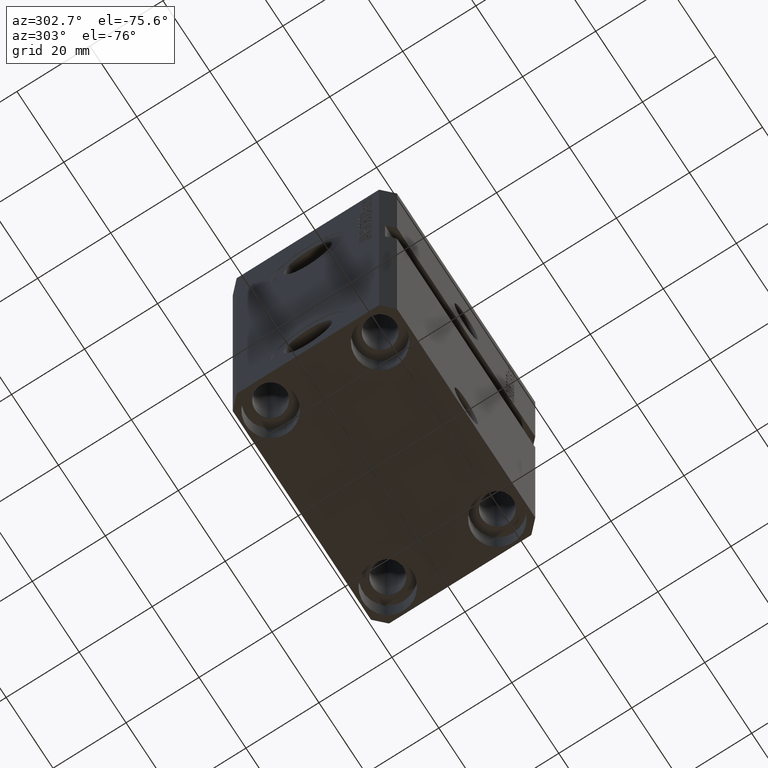
[diagram: clean part render]
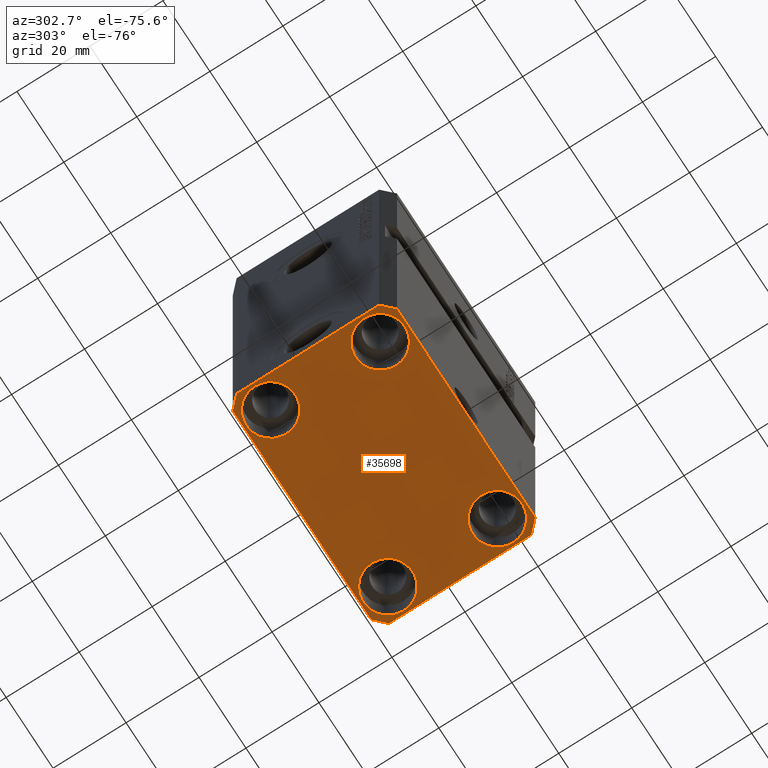
[diagram: same view with one face highlighted and labeled with its STEP entity id]
A machine part, auxiliary view. The second image highlights one B-rep face of the part: STEP entity #35698.
In plain terms, the highlighted planar face has unit normal (0, 0, 1).
Its self-contained STEP definition (entity closure, byte-faithful):
#857 = VECTOR ( 'NONE', #30151, 1000.000000000000000 ) ;
#1194 = DIRECTION ( 'NONE',  ( 1.000000000000000000, 0.000000000000000000, 0.000000000000000000 ) ) ;
#2670 = DIRECTION ( 'NONE',  ( 1.000000000000000000, 0.000000000000000000, 0.000000000000000000 ) ) ;
#3075 = EDGE_CURVE ( 'NONE', #17474, #27251, #9163, .T. ) ;
#3369 = LINE ( 'NONE', #42885, #857 ) ;
#3372 = VERTEX_POINT ( 'NONE', #23708 ) ;
#3601 = AXIS2_PLACEMENT_3D ( 'NONE', #34817, #10551, #42070 ) ;
#3788 = EDGE_CURVE ( 'NONE', #43618, #3372, #3369, .T. ) ;
#3791 = AXIS2_PLACEMENT_3D ( 'NONE', #38807, #34836, #6346 ) ;
#4440 = EDGE_CURVE ( 'NONE', #25737, #23677, #35612, .T. ) ;
#5726 = ORIENTED_EDGE ( 'NONE', *, *, #31973, .F. ) ;
#5839 = CARTESIAN_POINT ( 'NONE',  ( -29.49999999999650413, -22.49999999999949907, -107.0000000000000000 ) ) ;
#5885 = DIRECTION ( 'NONE',  ( 1.000000000000000000, 0.000000000000000000, 0.000000000000000000 ) ) ;
#6346 = DIRECTION ( 'NONE',  ( 1.000000000000000000, 0.000000000000000000, 0.000000000000000000 ) ) ;
#6481 = ORIENTED_EDGE ( 'NONE', *, *, #39179, .T. ) ;
#6886 = EDGE_CURVE ( 'NONE', #14270, #43878, #26251, .T. ) ;
#7192 = ORIENTED_EDGE ( 'NONE', *, *, #3075, .F. ) ;
#8447 = EDGE_CURVE ( 'NONE', #31248, #15737, #31954, .T. ) ;
#8511 = DIRECTION ( 'NONE',  ( -0.000000000000000000, -0.000000000000000000, 1.000000000000000000 ) ) ;
#8606 = DIRECTION ( 'NONE',  ( 1.000000000000000000, 0.000000000000000000, 0.000000000000000000 ) ) ;
#9163 = LINE ( 'NONE', #12703, #43671 ) ;
#9418 = CARTESIAN_POINT ( 'NONE',  ( -25.00000000000000355, -15.00000000000000000, -107.0000000000000000 ) ) ;
#10152 = LINE ( 'NONE', #24512, #38445 ) ;
#10551 = DIRECTION ( 'NONE',  ( -0.000000000000000000, -0.000000000000000000, 1.000000000000000000 ) ) ;
#10661 = CARTESIAN_POINT ( 'NONE',  ( -25.00000000000000355, -15.00000000000000000, -107.0000000000000000 ) ) ;
#11046 = ORIENTED_EDGE ( 'NONE', *, *, #3788, .F. ) ;
#11181 = CARTESIAN_POINT ( 'NONE',  ( 29.49999999999707967, 22.49999999999951328, -107.0000000000000000 ) ) ;
#11667 = AXIS2_PLACEMENT_3D ( 'NONE', #40957, #8511, #1194 ) ;
#12597 = EDGE_LOOP ( 'NONE', ( #42720, #29560 ) ) ;
#12605 = DIRECTION ( 'NONE',  ( -0.000000000000000000, -0.000000000000000000, 1.000000000000000000 ) ) ;
#12703 = CARTESIAN_POINT ( 'NONE',  ( 32.49999999999702993, 19.49999999999945999, -107.0000000000000000 ) ) ;
#13924 = VERTEX_POINT ( 'NONE', #31674 ) ;
#14270 = VERTEX_POINT ( 'NONE', #5839 ) ;
#14468 = DIRECTION ( 'NONE',  ( -0.000000000000000000, -0.000000000000000000, 1.000000000000000000 ) ) ;
#15270 = EDGE_CURVE ( 'NONE', #27251, #13924, #21947, .T. ) ;
#15687 = EDGE_LOOP ( 'NONE', ( #19629, #40084 ) ) ;
#15737 = VERTEX_POINT ( 'NONE', #45756 ) ;
#16057 = DIRECTION ( 'NONE',  ( 0.7071067811865474617, -0.7071067811865474617, 0.000000000000000000 ) ) ;
#16185 = ORIENTED_EDGE ( 'NONE', *, *, #37130, .F. ) ;
#16898 = CARTESIAN_POINT ( 'NONE',  ( -29.49999999999650413, 22.49999999999949907, -107.0000000000000000 ) ) ;
#17004 = CARTESIAN_POINT ( 'NONE',  ( 0.000000000000000000, 0.000000000000000000, -107.0000000000000000 ) ) ;
#17236 = FACE_OUTER_BOUND ( 'NONE', #28464, .T. ) ;
#17474 = VERTEX_POINT ( 'NONE', #21304 ) ;
#17784 = DIRECTION ( 'NONE',  ( 0.7071067811865483499, 0.7071067811865466846, 0.000000000000000000 ) ) ;
#18047 = CARTESIAN_POINT ( 'NONE',  ( 18.25000000002253842, -15.00000000000000000, -107.0000000000000000 ) ) ;
#19143 = EDGE_CURVE ( 'NONE', #15737, #31248, #30675, .T. ) ;
#19192 = CARTESIAN_POINT ( 'NONE',  ( -29.49999999999650413, -22.49999999999949907, -107.0000000000000000 ) ) ;
#19255 = ORIENTED_EDGE ( 'NONE', *, *, #30448, .F. ) ;
#19347 = DIRECTION ( 'NONE',  ( 1.000000000000000000, 0.000000000000000000, 0.000000000000000000 ) ) ;
#19407 = CARTESIAN_POINT ( 'NONE',  ( 31.74999999995845101, 15.00000000000000888, -107.0000000000000000 ) ) ;
#19629 = ORIENTED_EDGE ( 'NONE', *, *, #36345, .T. ) ;
#20036 = LINE ( 'NONE', #24033, #32231 ) ;
#20051 = DIRECTION ( 'NONE',  ( 1.334402673828349134E-14, 1.000000000000000000, 0.000000000000000000 ) ) ;
#20294 = CARTESIAN_POINT ( 'NONE',  ( -31.75000000004154899, -15.00000000000000000, -107.0000000000000000 ) ) ;
#20539 = FACE_BOUND ( 'NONE', #31920, .T. ) ;
#20803 = DIRECTION ( 'NONE',  ( -0.000000000000000000, -0.000000000000000000, 1.000000000000000000 ) ) ;
#21304 = CARTESIAN_POINT ( 'NONE',  ( 32.49999999999702993, 19.49999999999945999, -107.0000000000000000 ) ) ;
#21335 = AXIS2_PLACEMENT_3D ( 'NONE', #44791, #12605, #8606 ) ;
#21947 = LINE ( 'NONE', #40275, #22274 ) ;
#22141 = VECTOR ( 'NONE', #34013, 1000.000000000000000 ) ;
#22174 = DIRECTION ( 'NONE',  ( -0.000000000000000000, -0.000000000000000000, 1.000000000000000000 ) ) ;
#22274 = VECTOR ( 'NONE', #26419, 1000.000000000000000 ) ;
#23435 = CARTESIAN_POINT ( 'NONE',  ( 18.25000000004154543, 15.00000000000000888, -107.0000000000000000 ) ) ;
#23537 = DIRECTION ( 'NONE',  ( -0.7071067811865352493, 0.7071067811865597852, 0.000000000000000000 ) ) ;
#23677 = VERTEX_POINT ( 'NONE', #45235 ) ;
#23708 = CARTESIAN_POINT ( 'NONE',  ( -32.49999999999650413, -19.49999999999949907, -107.0000000000000000 ) ) ;
#23956 = LINE ( 'NONE', #16898, #36763 ) ;
#24033 = CARTESIAN_POINT ( 'NONE',  ( -32.49999999999650413, -19.49999999999949907, -107.0000000000000000 ) ) ;
#24512 = CARTESIAN_POINT ( 'NONE',  ( 32.49999999999651124, -19.49999999999949196, -107.0000000000000000 ) ) ;
#24842 = CIRCLE ( 'NONE', #42805, 6.750000000041541881 ) ;
#24852 = AXIS2_PLACEMENT_3D ( 'NONE', #37223, #22174, #19347 ) ;
#25587 = CIRCLE ( 'NONE', #24852, 6.749999999958452790 ) ;
#25737 = VERTEX_POINT ( 'NONE', #18047 ) ;
#26134 = EDGE_CURVE ( 'NONE', #45647, #41633, #27745, .T. ) ;
#26221 = AXIS2_PLACEMENT_3D ( 'NONE', #17004, #31356, #45658 ) ;
#26251 = LINE ( 'NONE', #19192, #22141 ) ;
#26254 = ORIENTED_EDGE ( 'NONE', *, *, #15270, .F. ) ;
#26419 = DIRECTION ( 'NONE',  ( -1.000000000000000000, -2.352167425053553784E-16, 0.000000000000000000 ) ) ;
#27251 = VERTEX_POINT ( 'NONE', #11181 ) ;
#27745 = CIRCLE ( 'NONE', #33757, 6.750000000041541881 ) ;
#28064 = FACE_BOUND ( 'NONE', #32391, .T. ) ;
#28464 = EDGE_LOOP ( 'NONE', ( #26254, #7192, #5726, #19255, #45007, #40128, #11046, #16185 ) ) ;
#28834 = LINE ( 'NONE', #32371, #42159 ) ;
#29469 = CARTESIAN_POINT ( 'NONE',  ( 32.49999999999651124, -19.49999999999949196, -107.0000000000000000 ) ) ;
#29508 = EDGE_CURVE ( 'NONE', #23677, #25737, #41343, .T. ) ;
#29560 = ORIENTED_EDGE ( 'NONE', *, *, #29508, .T. ) ;
#29864 = EDGE_CURVE ( 'NONE', #33525, #35283, #25587, .T. ) ;
#30151 = DIRECTION ( 'NONE',  ( 0.000000000000000000, -1.000000000000000000, 0.000000000000000000 ) ) ;
#30448 = EDGE_CURVE ( 'NONE', #43878, #45773, #28834, .T. ) ;
#30675 = CIRCLE ( 'NONE', #3601, 6.750000000022533087 ) ;
#31248 = VERTEX_POINT ( 'NONE', #42067 ) ;
#31356 = DIRECTION ( 'NONE',  ( 0.000000000000000000, 0.000000000000000000, 1.000000000000000000 ) ) ;
#31531 = ORIENTED_EDGE ( 'NONE', *, *, #8447, .T. ) ;
#31674 = CARTESIAN_POINT ( 'NONE',  ( -29.49999999999650413, 22.49999999999949907, -107.0000000000000000 ) ) ;
#31920 = EDGE_LOOP ( 'NONE', ( #46225, #31531 ) ) ;
#31954 = CIRCLE ( 'NONE', #11667, 6.750000000022533087 ) ;
#31973 = EDGE_CURVE ( 'NONE', #45773, #17474, #10152, .T. ) ;
#32231 = VECTOR ( 'NONE', #16057, 1000.000000000000114 ) ;
#32371 = CARTESIAN_POINT ( 'NONE',  ( 29.49999999999650413, -22.49999999999949196, -107.0000000000000000 ) ) ;
#32391 = EDGE_LOOP ( 'NONE', ( #6481, #38812 ) ) ;
#32804 = CARTESIAN_POINT ( 'NONE',  ( 24.99999999999999645, 15.00000000000000888, -107.0000000000000000 ) ) ;
#33525 = VERTEX_POINT ( 'NONE', #19407 ) ;
#33757 = AXIS2_PLACEMENT_3D ( 'NONE', #9418, #45149, #5885 ) ;
#33779 = CIRCLE ( 'NONE', #42741, 6.749999999958452790 ) ;
#34013 = DIRECTION ( 'NONE',  ( 1.000000000000000000, 1.176083712526788232E-16, 0.000000000000000000 ) ) ;
#34087 = DIRECTION ( 'NONE',  ( -0.7071067811865474617, -0.7071067811865474617, 0.000000000000000000 ) ) ;
#34817 = CARTESIAN_POINT ( 'NONE',  ( -25.00000000000000355, 15.00000000000000000, -107.0000000000000000 ) ) ;
#34836 = DIRECTION ( 'NONE',  ( -0.000000000000000000, -0.000000000000000000, 1.000000000000000000 ) ) ;
#34889 = PLANE ( 'NONE',  #26221 ) ;
#34891 = CARTESIAN_POINT ( 'NONE',  ( 29.49999999999650413, -22.49999999999949196, -107.0000000000000000 ) ) ;
#35120 = EDGE_CURVE ( 'NONE', #3372, #14270, #20036, .T. ) ;
#35283 = VERTEX_POINT ( 'NONE', #23435 ) ;
#35364 = CARTESIAN_POINT ( 'NONE',  ( -18.24999999995845812, -15.00000000000000000, -107.0000000000000000 ) ) ;
#35612 = CIRCLE ( 'NONE', #21335, 6.749999999977465137 ) ;
#35698 = ADVANCED_FACE ( 'NONE', ( #28064, #41907, #45897, #20539, #17236 ), #34889, .F. ) ;
#36345 = EDGE_CURVE ( 'NONE', #35283, #33525, #33779, .T. ) ;
#36763 = VECTOR ( 'NONE', #34087, 1000.000000000000114 ) ;
#37130 = EDGE_CURVE ( 'NONE', #13924, #43618, #23956, .T. ) ;
#37223 = CARTESIAN_POINT ( 'NONE',  ( 24.99999999999999645, 15.00000000000000888, -107.0000000000000000 ) ) ;
#38445 = VECTOR ( 'NONE', #20051, 1000.000000000000000 ) ;
#38807 = CARTESIAN_POINT ( 'NONE',  ( 25.00000000000000355, -15.00000000000000000, -107.0000000000000000 ) ) ;
#38812 = ORIENTED_EDGE ( 'NONE', *, *, #26134, .T. ) ;
#39179 = EDGE_CURVE ( 'NONE', #41633, #45647, #24842, .T. ) ;
#39600 = DIRECTION ( 'NONE',  ( 1.000000000000000000, 0.000000000000000000, 0.000000000000000000 ) ) ;
#40068 = CARTESIAN_POINT ( 'NONE',  ( -32.49999999999650413, 19.49999999999949907, -107.0000000000000000 ) ) ;
#40084 = ORIENTED_EDGE ( 'NONE', *, *, #29864, .T. ) ;
#40128 = ORIENTED_EDGE ( 'NONE', *, *, #35120, .F. ) ;
#40275 = CARTESIAN_POINT ( 'NONE',  ( 29.49999999999707967, 22.49999999999951328, -107.0000000000000000 ) ) ;
#40957 = CARTESIAN_POINT ( 'NONE',  ( -25.00000000000000355, 15.00000000000000000, -107.0000000000000000 ) ) ;
#41343 = CIRCLE ( 'NONE', #3791, 6.749999999977465137 ) ;
#41633 = VERTEX_POINT ( 'NONE', #20294 ) ;
#41907 = FACE_BOUND ( 'NONE', #12597, .T. ) ;
#42067 = CARTESIAN_POINT ( 'NONE',  ( -18.24999999997747224, 15.00000000000000000, -107.0000000000000000 ) ) ;
#42070 = DIRECTION ( 'NONE',  ( 1.000000000000000000, 0.000000000000000000, 0.000000000000000000 ) ) ;
#42159 = VECTOR ( 'NONE', #17784, 1000.000000000000000 ) ;
#42720 = ORIENTED_EDGE ( 'NONE', *, *, #4440, .T. ) ;
#42741 = AXIS2_PLACEMENT_3D ( 'NONE', #32804, #14468, #39600 ) ;
#42805 = AXIS2_PLACEMENT_3D ( 'NONE', #10661, #20803, #2670 ) ;
#42885 = CARTESIAN_POINT ( 'NONE',  ( -32.49999999999650413, 19.49999999999949907, -107.0000000000000000 ) ) ;
#43618 = VERTEX_POINT ( 'NONE', #40068 ) ;
#43671 = VECTOR ( 'NONE', #23537, 1000.000000000000000 ) ;
#43878 = VERTEX_POINT ( 'NONE', #34891 ) ;
#44791 = CARTESIAN_POINT ( 'NONE',  ( 25.00000000000000355, -15.00000000000000000, -107.0000000000000000 ) ) ;
#45007 = ORIENTED_EDGE ( 'NONE', *, *, #6886, .F. ) ;
#45149 = DIRECTION ( 'NONE',  ( -0.000000000000000000, -0.000000000000000000, 1.000000000000000000 ) ) ;
#45235 = CARTESIAN_POINT ( 'NONE',  ( 31.74999999997746869, -15.00000000000000000, -107.0000000000000000 ) ) ;
#45647 = VERTEX_POINT ( 'NONE', #35364 ) ;
#45658 = DIRECTION ( 'NONE',  ( 1.000000000000000000, 0.000000000000000000, -0.000000000000000000 ) ) ;
#45756 = CARTESIAN_POINT ( 'NONE',  ( -31.75000000002253842, 15.00000000000000000, -107.0000000000000000 ) ) ;
#45773 = VERTEX_POINT ( 'NONE', #29469 ) ;
#45897 = FACE_BOUND ( 'NONE', #15687, .T. ) ;
#46225 = ORIENTED_EDGE ( 'NONE', *, *, #19143, .T. ) ;